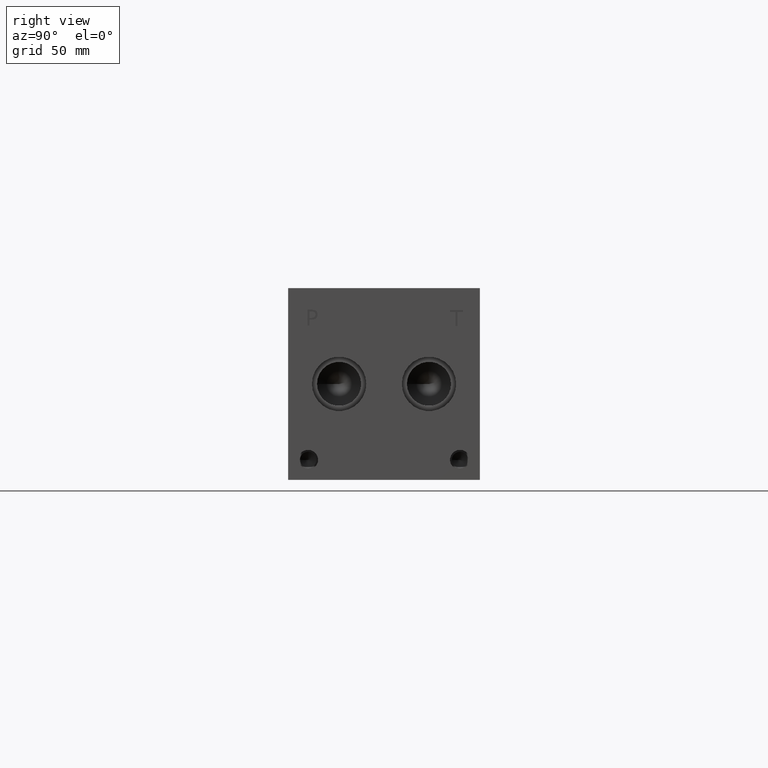
[diagram: clean part render]
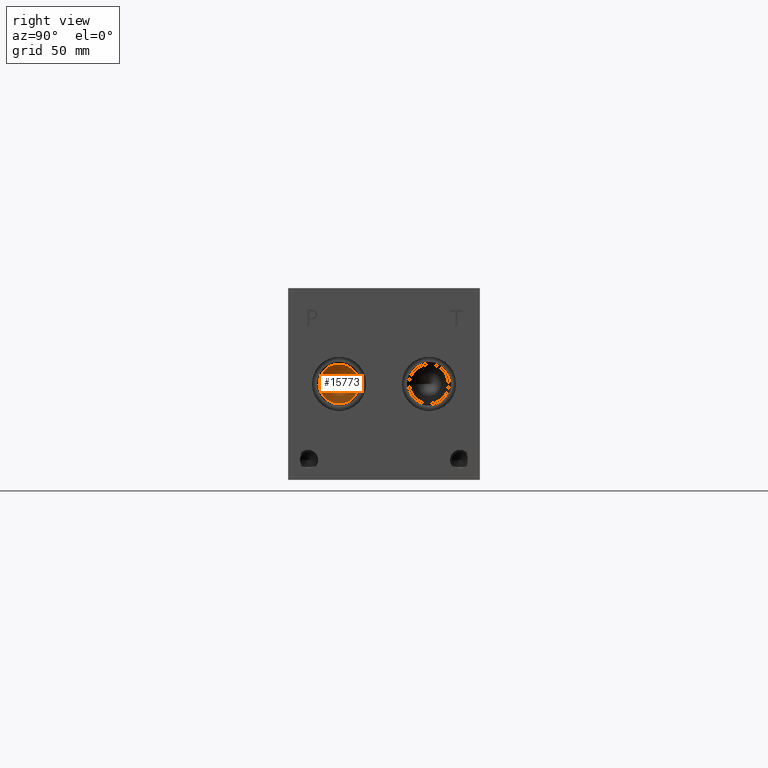
[diagram: same view with one face highlighted and labeled with its STEP entity id]
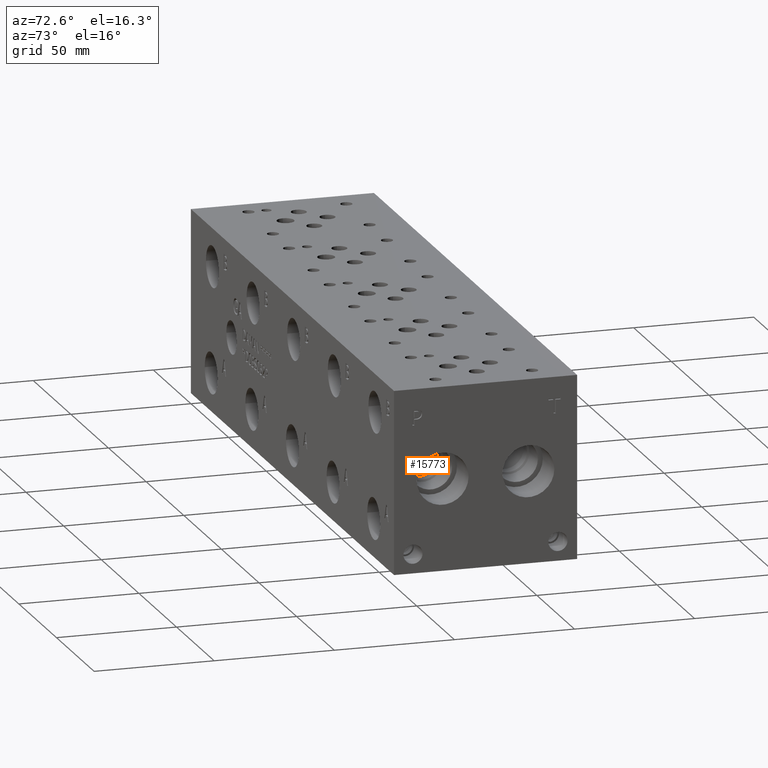
[diagram: same view with one face highlighted and labeled with its STEP entity id]
A machine part, right view. The second image highlights one B-rep face of the part: STEP entity #15773.
A second angle (auxiliary view) of the same face is appended — the face is thin or edge-on in the first view.
In plain terms, the highlighted conical surface has half-angle 60 deg.
Its self-contained STEP definition (entity closure, byte-faithful):
#137=CONICAL_SURFACE('',#16517,3.96875,1.0471975511966);
#305=CIRCLE('',#16518,7.9375);
#306=CIRCLE('',#16519,7.9375);
#1838=FACE_OUTER_BOUND('',#2752,.T.);
#2752=EDGE_LOOP('',(#13494,#13495,#13496,#13497));
#4248=LINE('',#26726,#5647);
#5647=VECTOR('',#19363,3.96875);
#7415=VERTEX_POINT('',#26722);
#7416=VERTEX_POINT('',#26723);
#7417=VERTEX_POINT('',#26725);
#9531=EDGE_CURVE('',#7415,#7416,#305,.T.);
#9532=EDGE_CURVE('',#7416,#7417,#4248,.T.);
#9533=EDGE_CURVE('',#7416,#7415,#306,.T.);
#13494=ORIENTED_EDGE('',*,*,#9531,.T.);
#13495=ORIENTED_EDGE('',*,*,#9532,.T.);
#13496=ORIENTED_EDGE('',*,*,#9532,.F.);
#13497=ORIENTED_EDGE('',*,*,#9533,.T.);
#15773=ADVANCED_FACE('',(#1838),#137,.F.);
#16517=AXIS2_PLACEMENT_3D('',#26721,#19359,#19360);
#16518=AXIS2_PLACEMENT_3D('',#26724,#19361,#19362);
#16519=AXIS2_PLACEMENT_3D('',#26727,#19364,#19365);
#19359=DIRECTION('center_axis',(1.,0.,0.));
#19360=DIRECTION('ref_axis',(0.,1.,0.));
#19361=DIRECTION('center_axis',(1.,0.,0.));
#19362=DIRECTION('ref_axis',(0.,1.,0.));
#19363=DIRECTION('',(-0.5,0.866025403784439,1.06057523872491E-16));
#19364=DIRECTION('center_axis',(1.,0.,0.));
#19365=DIRECTION('ref_axis',(0.,1.,0.));
#26721=CARTESIAN_POINT('Origin',(235.833641119154,20.2438,38.1));
#26722=CARTESIAN_POINT('',(238.125,28.1813,38.1));
#26723=CARTESIAN_POINT('',(238.125,12.3063,38.1));
#26724=CARTESIAN_POINT('Origin',(238.125,20.2438,38.1));
#26725=CARTESIAN_POINT('',(233.542282238307,20.2438,38.1));
#26726=CARTESIAN_POINT('',(235.833641119154,16.27505,38.1));
#26727=CARTESIAN_POINT('Origin',(238.125,20.2438,38.1));